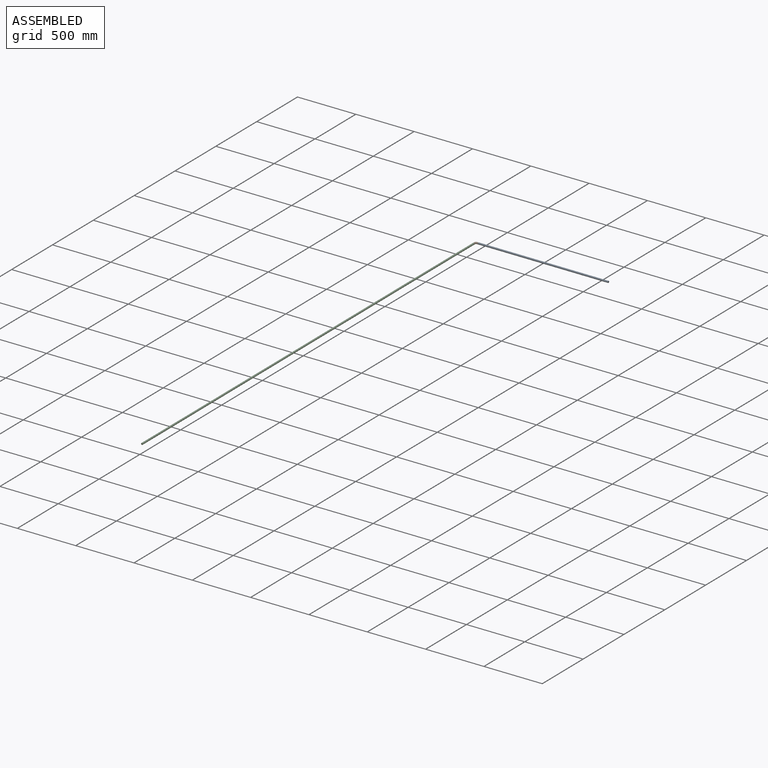
[diagram: assembled view]
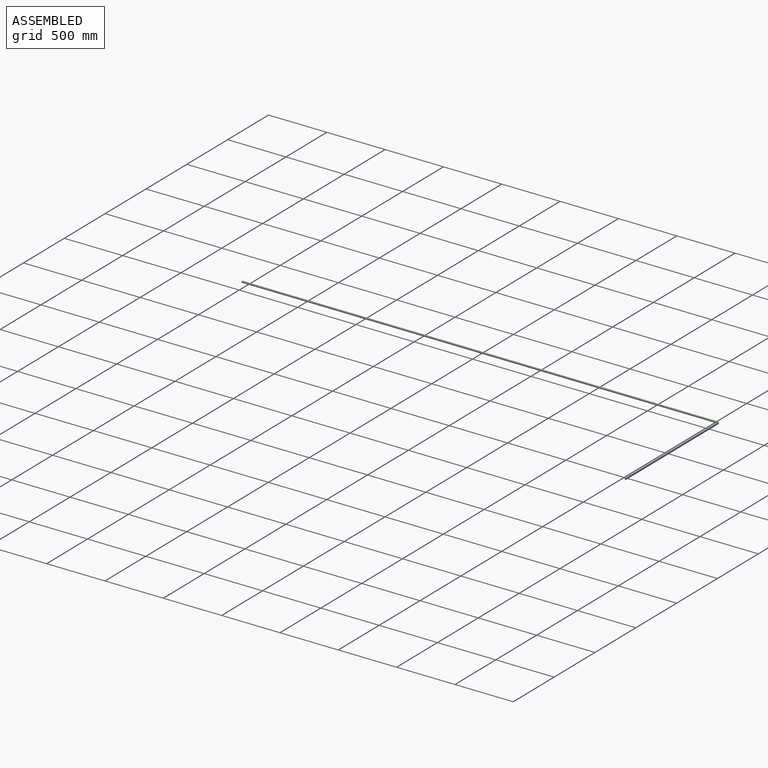
[diagram: assembled view, second angle]
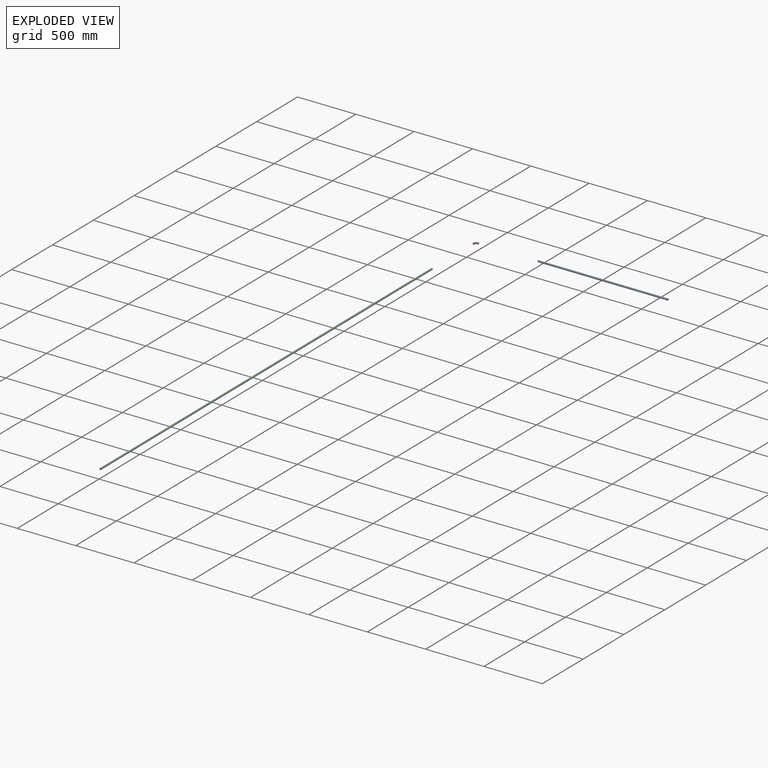
[diagram: exploded view]
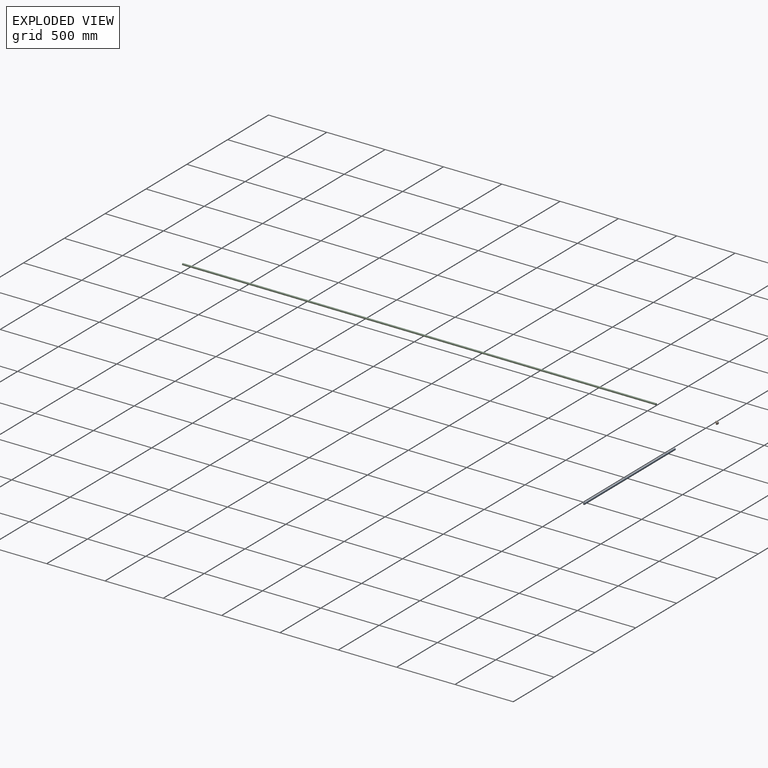
[diagram: exploded view, second angle]
ASSEMBLY  parts=3 mates=2
PART A: 3 faces, bbox 15x1115x15 mm
  f0: cylinder r=7.5mm len=1115mm, axis (0,1,0), area 52543.1mm2, adj f1,f2
  f1: plane 15x15mm, normal (0,-1,0), area 176.7mm2, adj f0
  f2: plane 15x15mm, normal (0,1,0), area 176.7mm2, adj f0
PART B: 5 faces, bbox 34.4x34.4x15 mm
  f0: plane 15x15mm, normal (0,-1,0), area 176.7mm2, adj f2
  f1: plane 15x15mm, normal (1,0,0), area 176.7mm2, adj f4
  f2: cylinder r=7.5mm len=15mm, axis (0,1,0), area 471.2mm2, adj f0,f3
  f3: torus R=15mm, axis (0,0,-1), area 1110.3mm2, adj f2,f4
  f4: cylinder r=7.5mm len=15mm, axis (1,0,0), area 471.2mm2, adj f1,f3
PART C: 3 faces, bbox 15x4060x15 mm
  f0: cylinder r=7.5mm len=4060mm, axis (0,1,0), area 191323mm2, adj f1,f2
  f1: plane 15x15mm, normal (0,-1,0), area 176.7mm2, adj f0
  f2: plane 15x15mm, normal (0,1,0), area 176.7mm2, adj f0
PLACE A rot(axis=(0.58,0.58,-0.58),120deg) t=(1140,4110,-25)mm
PLACE B t=(0,4085,-25)mm
PLACE C t=(0,4085,-25)mm
MATE revolute A.f0 <-> B.f4  axis (1,0,0) through (25,4110,-25)mm
MATE revolute C.f0 <-> B.f2  axis (0,1,0) through (0,4085,-25)mm
